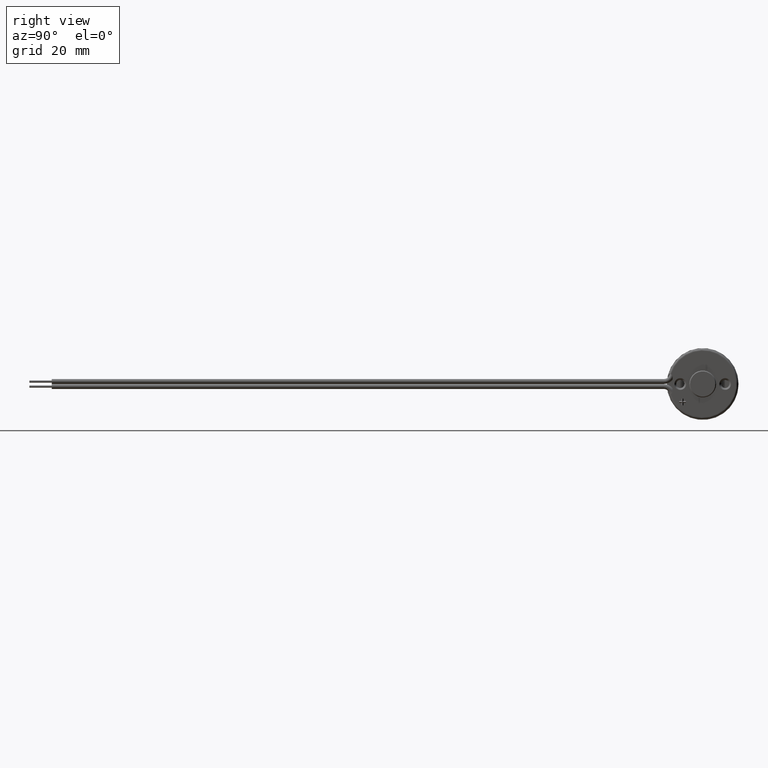
[diagram: clean part render]
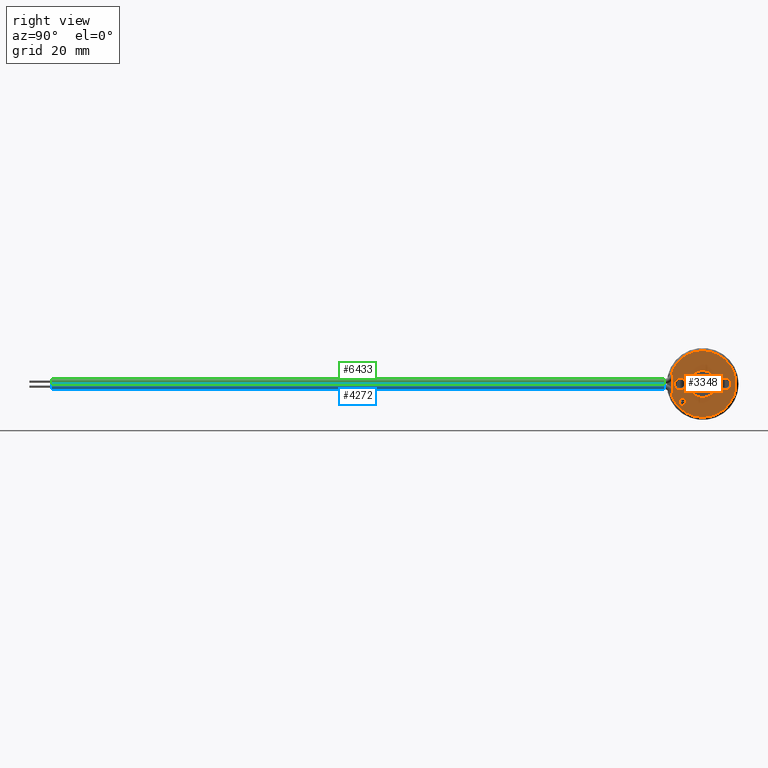
[diagram: same view with three faces highlighted in distinct colors, each labeled with its STEP entity id]
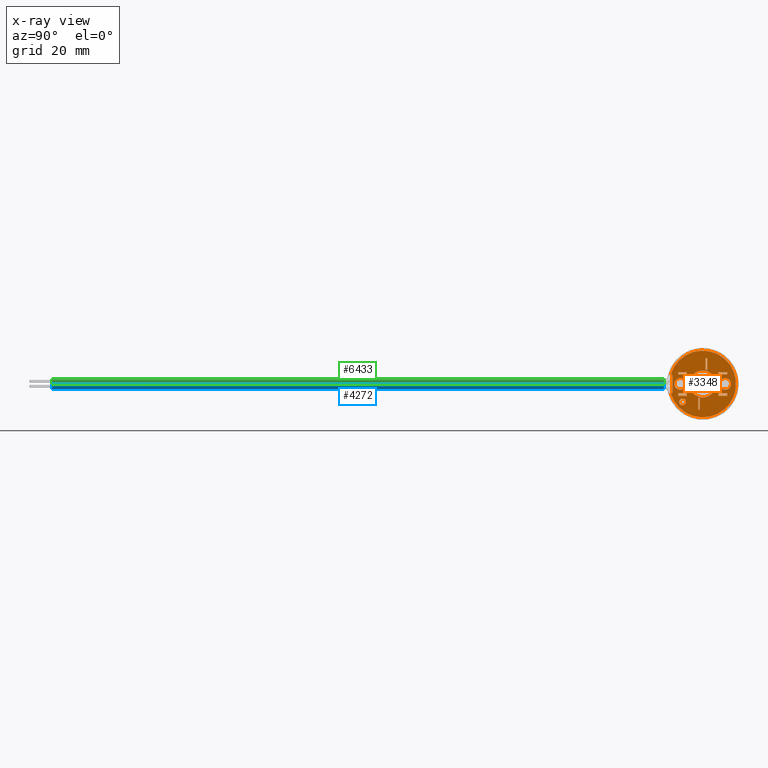
[diagram: x-ray of the same camera — body ghosted, the three highlighted faces saturated]
A machine part, right view with three faces highlighted in distinct colors.
The next image is the same camera in x-ray (body ghosted, the three faces saturated) — at least one of them is partly hidden behind the body in this view.
Their STEP definitions:

[orange] entity #3348 — the highlighted planar face has unit normal (-1, 0, 0).
#38=CARTESIAN_POINT('',(3.55E1,0.E0,0.E0));
#39=DIRECTION('',(1.E0,0.E0,0.E0));
#40=DIRECTION('',(0.E0,1.E0,0.E0));
#41=AXIS2_PLACEMENT_3D('',#38,#39,#40);
#43=CARTESIAN_POINT('',(3.55E1,0.E0,0.E0));
#44=DIRECTION('',(-1.E0,0.E0,0.E0));
#45=DIRECTION('',(0.E0,1.E0,0.E0));
#46=AXIS2_PLACEMENT_3D('',#43,#44,#45);
#48=CARTESIAN_POINT('',(3.549997758490E1,-5.E0,0.E0));
#49=DIRECTION('',(-1.E0,0.E0,0.E0));
#50=DIRECTION('',(0.E0,0.E0,-1.E0));
#51=AXIS2_PLACEMENT_3D('',#48,#49,#50);
#53=CARTESIAN_POINT('',(3.549997758490E1,-5.E0,0.E0));
#54=DIRECTION('',(-1.E0,0.E0,0.E0));
#55=DIRECTION('',(0.E0,0.E0,1.E0));
#56=AXIS2_PLACEMENT_3D('',#53,#54,#55);
#58=CARTESIAN_POINT('',(3.549997758490E1,5.E0,0.E0));
#59=DIRECTION('',(-1.E0,0.E0,0.E0));
#60=DIRECTION('',(0.E0,0.E0,-1.E0));
#61=AXIS2_PLACEMENT_3D('',#58,#59,#60);
#63=CARTESIAN_POINT('',(3.549997758490E1,5.E0,0.E0));
#64=DIRECTION('',(-1.E0,0.E0,0.E0));
#65=DIRECTION('',(0.E0,0.E0,1.E0));
#66=AXIS2_PLACEMENT_3D('',#63,#64,#65);
#68=DIRECTION('',(0.E0,-1.E0,0.E0));
#69=VECTOR('',#68,4.E-1);
#70=CARTESIAN_POINT('',(3.55E1,1.E0,5.7E0));
#71=LINE('',#70,#69);
#72=DIRECTION('',(0.E0,0.E0,-1.E0));
#73=VECTOR('',#72,2.6E0);
#74=CARTESIAN_POINT('',(3.55E1,6.E-1,5.7E0));
#75=LINE('',#74,#73);
#76=DIRECTION('',(0.E0,1.E0,0.E0));
#77=VECTOR('',#76,4.E-1);
#78=CARTESIAN_POINT('',(3.55E1,6.E-1,3.1E0));
#79=LINE('',#78,#77);
#80=DIRECTION('',(0.E0,0.E0,1.E0));
#81=VECTOR('',#80,2.6E0);
#82=CARTESIAN_POINT('',(3.55E1,1.E0,3.1E0));
#83=LINE('',#82,#81);
#84=DIRECTION('',(0.E0,-1.E0,0.E0));
#85=VECTOR('',#84,4.E-1);
#86=CARTESIAN_POINT('',(3.55E1,-6.E-1,-3.1E0));
#87=LINE('',#86,#85);
#88=DIRECTION('',(0.E0,0.E0,-1.E0));
#89=VECTOR('',#88,2.6E0);
#90=CARTESIAN_POINT('',(3.55E1,-1.E0,-3.1E0));
#91=LINE('',#90,#89);
#92=DIRECTION('',(0.E0,1.E0,0.E0));
#93=VECTOR('',#92,4.E-1);
#94=CARTESIAN_POINT('',(3.55E1,-1.E0,-5.7E0));
#95=LINE('',#94,#93);
#96=DIRECTION('',(0.E0,0.E0,1.E0));
#97=VECTOR('',#96,2.6E0);
#98=CARTESIAN_POINT('',(3.55E1,-6.E-1,-5.7E0));
#99=LINE('',#98,#97);
#100=DIRECTION('',(0.E0,0.E0,1.E0));
#101=VECTOR('',#100,5.4E-1);
#102=CARTESIAN_POINT('',(3.55E1,5.5E0,-2.64E0));
#103=LINE('',#102,#101);
#104=DIRECTION('',(0.E0,-1.E0,0.E0));
#105=VECTOR('',#104,2.E0);
#106=CARTESIAN_POINT('',(3.55E1,5.5E0,-2.1E0));
#107=LINE('',#106,#105);
#108=DIRECTION('',(0.E0,0.E0,-1.E0));
#109=VECTOR('',#108,5.4E-1);
#110=CARTESIAN_POINT('',(3.55E1,3.5E0,-2.1E0));
#111=LINE('',#110,#109);
#112=DIRECTION('',(0.E0,1.E0,0.E0));
#113=VECTOR('',#112,2.E0);
#114=CARTESIAN_POINT('',(3.55E1,3.5E0,-2.64E0));
#115=LINE('',#114,#113);
#116=DIRECTION('',(0.E0,-1.E0,0.E0));
#117=VECTOR('',#116,2.E0);
#118=CARTESIAN_POINT('',(3.55E1,5.5E0,2.64E0));
#119=LINE('',#118,#117);
#120=DIRECTION('',(0.E0,0.E0,-1.E0));
#121=VECTOR('',#120,5.4E-1);
#122=CARTESIAN_POINT('',(3.55E1,3.5E0,2.64E0));
#123=LINE('',#122,#121);
#124=DIRECTION('',(0.E0,1.E0,0.E0));
#125=VECTOR('',#124,2.E0);
#126=CARTESIAN_POINT('',(3.55E1,3.5E0,2.1E0));
#127=LINE('',#126,#125);
#128=DIRECTION('',(0.E0,0.E0,1.E0));
#129=VECTOR('',#128,5.4E-1);
#130=CARTESIAN_POINT('',(3.55E1,5.5E0,2.1E0));
#131=LINE('',#130,#129);
#132=DIRECTION('',(0.E0,1.E0,0.E0));
#133=VECTOR('',#132,2.E0);
#134=CARTESIAN_POINT('',(3.55E1,-5.5E0,-2.64E0));
#135=LINE('',#134,#133);
#136=DIRECTION('',(0.E0,0.E0,1.E0));
#137=VECTOR('',#136,5.4E-1);
#138=CARTESIAN_POINT('',(3.55E1,-3.5E0,-2.64E0));
#139=LINE('',#138,#137);
#140=DIRECTION('',(0.E0,-1.E0,0.E0));
#141=VECTOR('',#140,2.E0);
#142=CARTESIAN_POINT('',(3.55E1,-3.5E0,-2.1E0));
#143=LINE('',#142,#141);
#144=DIRECTION('',(0.E0,0.E0,-1.E0));
#145=VECTOR('',#144,5.4E-1);
#146=CARTESIAN_POINT('',(3.55E1,-5.5E0,-2.1E0));
#147=LINE('',#146,#145);
#148=DIRECTION('',(0.E0,0.E0,-1.E0));
#149=VECTOR('',#148,5.4E-1);
#150=CARTESIAN_POINT('',(3.55E1,-5.5E0,2.64E0));
#151=LINE('',#150,#149);
#152=DIRECTION('',(0.E0,1.E0,0.E0));
#153=VECTOR('',#152,2.E0);
#154=CARTESIAN_POINT('',(3.55E1,-5.5E0,2.1E0));
#155=LINE('',#154,#153);
#156=DIRECTION('',(0.E0,0.E0,1.E0));
#157=VECTOR('',#156,5.4E-1);
#158=CARTESIAN_POINT('',(3.55E1,-3.5E0,2.1E0));
#159=LINE('',#158,#157);
#160=DIRECTION('',(0.E0,-1.E0,0.E0));
#161=VECTOR('',#160,2.E0);
#162=CARTESIAN_POINT('',(3.55E1,-3.5E0,2.64E0));
#163=LINE('',#162,#161);
#164=CARTESIAN_POINT('',(3.55E1,-4.5E0,-4.E0));
#165=DIRECTION('',(1.E0,0.E0,0.E0));
#166=DIRECTION('',(0.E0,1.065814103640E-14,-1.E0));
#167=AXIS2_PLACEMENT_3D('',#164,#165,#166);
#169=CARTESIAN_POINT('',(3.55E1,-4.5E0,-4.E0));
#170=DIRECTION('',(1.E0,0.E0,0.E0));
#171=DIRECTION('',(0.E0,1.065814103640E-14,1.E0));
#172=AXIS2_PLACEMENT_3D('',#169,#170,#171);
#174=CARTESIAN_POINT('',(3.55E1,0.E0,0.E0));
#175=DIRECTION('',(-1.E0,0.E0,0.E0));
#176=DIRECTION('',(0.E0,-9.563047559630E-1,2.923717047227E-1));
#177=AXIS2_PLACEMENT_3D('',#174,#175,#176);
#179=DIRECTION('',(0.E0,9.563047559630E-1,2.923717047228E-1));
#180=VECTOR('',#179,4.388469402186E-2);
#181=CARTESIAN_POINT('',(3.55E1,-7.095781289246E0,-2.169398049043E0));
#182=LINE('',#181,#180);
#183=DIRECTION('',(0.E0,0.E0,1.E0));
#184=VECTOR('',#183,3.356830056517E0);
#185=CARTESIAN_POINT('',(3.55E1,-6.7E0,-1.678415028259E0));
#186=LINE('',#185,#184);
#187=DIRECTION('',(0.E0,-9.563047559630E-1,2.923717047227E-1));
#188=VECTOR('',#187,4.388469402186E-2);
#189=CARTESIAN_POINT('',(3.55E1,-7.053814147639E0,2.156567406240E0));
#190=LINE('',#189,#188);
#618=CARTESIAN_POINT('',(3.55E1,-7.2E0,-1.678415028259E0));
#619=DIRECTION('',(-1.E0,0.E0,0.E0));
#620=DIRECTION('',(0.E0,1.E0,0.E0));
#621=AXIS2_PLACEMENT_3D('',#618,#619,#620);
#2516=CARTESIAN_POINT('',(3.55E1,-7.2E0,1.678415028259E0));
#2517=DIRECTION('',(-1.E0,0.E0,0.E0));
#2518=DIRECTION('',(0.E0,2.923717047227E-1,9.563047559630E-1));
#2519=AXIS2_PLACEMENT_3D('',#2516,#2517,#2518);
#2617=CARTESIAN_POINT('',(3.55E1,3.E0,0.E0));
#2618=CARTESIAN_POINT('',(3.55E1,-3.E0,0.E0));
#2619=VERTEX_POINT('',#2617);
#2620=VERTEX_POINT('',#2618);
#2645=CARTESIAN_POINT('',(3.549997758490E1,-5.E0,-1.300020910666E0));
#2646=CARTESIAN_POINT('',(3.549997758490E1,-5.E0,1.300020910666E0));
#2647=VERTEX_POINT('',#2645);
#2648=VERTEX_POINT('',#2646);
#2653=CARTESIAN_POINT('',(3.549997758490E1,5.E0,-1.300020910666E0));
#2654=CARTESIAN_POINT('',(3.549997758490E1,5.E0,1.300020910666E0));
#2655=VERTEX_POINT('',#2653);
#2656=VERTEX_POINT('',#2654);
#2669=CARTESIAN_POINT('',(3.55E1,5.5E0,-2.64E0));
#2670=CARTESIAN_POINT('',(3.55E1,5.5E0,-2.1E0));
#2671=VERTEX_POINT('',#2669);
#2672=VERTEX_POINT('',#2670);
#2673=CARTESIAN_POINT('',(3.55E1,3.5E0,-2.1E0));
#2674=VERTEX_POINT('',#2673);
#2675=CARTESIAN_POINT('',(3.55E1,3.5E0,-2.64E0));
#2676=VERTEX_POINT('',#2675);
#2701=CARTESIAN_POINT('',(3.55E1,5.5E0,2.64E0));
#2702=CARTESIAN_POINT('',(3.55E1,3.5E0,2.64E0));
#2703=VERTEX_POINT('',#2701);
#2704=VERTEX_POINT('',#2702);
#2705=CARTESIAN_POINT('',(3.55E1,3.5E0,2.1E0));
#2706=VERTEX_POINT('',#2705);
#2707=CARTESIAN_POINT('',(3.55E1,5.5E0,2.1E0));
#2708=VERTEX_POINT('',#2707);
#2709=CARTESIAN_POINT('',(3.55E1,-5.5E0,-2.64E0));
#2710=CARTESIAN_POINT('',(3.55E1,-3.5E0,-2.64E0));
#2711=VERTEX_POINT('',#2709);
#2712=VERTEX_POINT('',#2710);
#2713=CARTESIAN_POINT('',(3.55E1,-3.5E0,-2.1E0));
#2714=VERTEX_POINT('',#2713);
#2715=CARTESIAN_POINT('',(3.55E1,-5.5E0,-2.1E0));
#2716=VERTEX_POINT('',#2715);
#2717=CARTESIAN_POINT('',(3.55E1,-5.5E0,2.64E0));
#2718=CARTESIAN_POINT('',(3.55E1,-5.5E0,2.1E0));
#2719=VERTEX_POINT('',#2717);
#2720=VERTEX_POINT('',#2718);
#2721=CARTESIAN_POINT('',(3.55E1,-3.5E0,2.1E0));
#2722=VERTEX_POINT('',#2721);
#2723=CARTESIAN_POINT('',(3.55E1,-3.5E0,2.64E0));
#2724=VERTEX_POINT('',#2723);
#2741=CARTESIAN_POINT('',(3.55E1,1.E0,5.7E0));
#2742=CARTESIAN_POINT('',(3.55E1,6.E-1,5.7E0));
#2743=VERTEX_POINT('',#2741);
#2744=VERTEX_POINT('',#2742);
#2745=CARTESIAN_POINT('',(3.55E1,6.E-1,3.1E0));
#2746=VERTEX_POINT('',#2745);
#2747=CARTESIAN_POINT('',(3.55E1,1.E0,3.1E0));
#2748=VERTEX_POINT('',#2747);
#2749=CARTESIAN_POINT('',(3.55E1,-6.E-1,-3.1E0));
#2750=CARTESIAN_POINT('',(3.55E1,-1.E0,-3.1E0));
#2751=VERTEX_POINT('',#2749);
#2752=VERTEX_POINT('',#2750);
#2753=CARTESIAN_POINT('',(3.55E1,-1.E0,-5.7E0));
#2754=VERTEX_POINT('',#2753);
#2755=CARTESIAN_POINT('',(3.55E1,-6.E-1,-5.7E0));
#2756=VERTEX_POINT('',#2755);
#2757=CARTESIAN_POINT('',(3.55E1,-4.5E0,-4.75E0));
#2758=CARTESIAN_POINT('',(3.55E1,-4.5E0,-3.25E0));
#2759=VERTEX_POINT('',#2757);
#2760=VERTEX_POINT('',#2758);
#3074=CARTESIAN_POINT('',(3.55E1,-7.095781289246E0,-2.169398049043E0));
#3076=VERTEX_POINT('',#3074);
#3077=CARTESIAN_POINT('',(3.55E1,-7.095781289246E0,2.169398049043E0));
#3078=VERTEX_POINT('',#3077);
#3085=CARTESIAN_POINT('',(3.55E1,-6.7E0,-1.678415028259E0));
#3086=CARTESIAN_POINT('',(3.55E1,-6.7E0,1.678415028259E0));
#3087=VERTEX_POINT('',#3085);
#3088=VERTEX_POINT('',#3086);
#3093=CARTESIAN_POINT('',(3.55E1,-7.053814147639E0,2.156567406240E0));
#3094=VERTEX_POINT('',#3093);
#3095=CARTESIAN_POINT('',(3.55E1,-7.053814147639E0,-2.156567406240E0));
#3096=VERTEX_POINT('',#3095);
#3247=CARTESIAN_POINT('',(3.55E1,0.E0,0.E0));
#3248=DIRECTION('',(-1.E0,0.E0,0.E0));
#3249=DIRECTION('',(0.E0,1.E0,0.E0));
#3250=AXIS2_PLACEMENT_3D('',#3247,#3248,#3249);
#3251=PLANE('',#3250);
#3253=ORIENTED_EDGE('',*,*,#3252,.T.);
#3255=ORIENTED_EDGE('',*,*,#3254,.T.);
#3257=ORIENTED_EDGE('',*,*,#3256,.F.);
#3259=ORIENTED_EDGE('',*,*,#3258,.T.);
#3261=ORIENTED_EDGE('',*,*,#3260,.F.);
#3263=ORIENTED_EDGE('',*,*,#3262,.T.);
#3264=EDGE_LOOP('',(#3253,#3255,#3257,#3259,#3261,#3263));
#3265=FACE_OUTER_BOUND('',#3264,.F.);
#3267=ORIENTED_EDGE('',*,*,#3266,.F.);
#3269=ORIENTED_EDGE('',*,*,#3268,.F.);
#3270=EDGE_LOOP('',(#3267,#3269));
#3271=FACE_BOUND('',#3270,.F.);
#3273=ORIENTED_EDGE('',*,*,#3272,.F.);
#3275=ORIENTED_EDGE('',*,*,#3274,.F.);
#3276=EDGE_LOOP('',(#3273,#3275));
#3277=FACE_BOUND('',#3276,.F.);
#3279=ORIENTED_EDGE('',*,*,#3278,.T.);
#3281=ORIENTED_EDGE('',*,*,#3280,.T.);
#3283=ORIENTED_EDGE('',*,*,#3282,.T.);
#3285=ORIENTED_EDGE('',*,*,#3284,.T.);
#3286=EDGE_LOOP('',(#3279,#3281,#3283,#3285));
#3287=FACE_BOUND('',#3286,.F.);
#3289=ORIENTED_EDGE('',*,*,#3288,.T.);
#3291=ORIENTED_EDGE('',*,*,#3290,.T.);
#3293=ORIENTED_EDGE('',*,*,#3292,.T.);
#3295=ORIENTED_EDGE('',*,*,#3294,.T.);
#3296=EDGE_LOOP('',(#3289,#3291,#3293,#3295));
#3297=FACE_BOUND('',#3296,.F.);
#3299=ORIENTED_EDGE('',*,*,#3298,.T.);
#3301=ORIENTED_EDGE('',*,*,#3300,.T.);
#3303=ORIENTED_EDGE('',*,*,#3302,.T.);
#3305=ORIENTED_EDGE('',*,*,#3304,.T.);
#3306=EDGE_LOOP('',(#3299,#3301,#3303,#3305));
#3307=FACE_BOUND('',#3306,.F.);
#3309=ORIENTED_EDGE('',*,*,#3308,.T.);
#3311=ORIENTED_EDGE('',*,*,#3310,.T.);
#3313=ORIENTED_EDGE('',*,*,#3312,.T.);
#3315=ORIENTED_EDGE('',*,*,#3314,.T.);
#3316=EDGE_LOOP('',(#3309,#3311,#3313,#3315));
#3317=FACE_BOUND('',#3316,.F.);
#3319=ORIENTED_EDGE('',*,*,#3318,.T.);
#3321=ORIENTED_EDGE('',*,*,#3320,.T.);
#3323=ORIENTED_EDGE('',*,*,#3322,.T.);
#3325=ORIENTED_EDGE('',*,*,#3324,.T.);
#3326=EDGE_LOOP('',(#3319,#3321,#3323,#3325));
#3327=FACE_BOUND('',#3326,.F.);
#3329=ORIENTED_EDGE('',*,*,#3328,.T.);
#3331=ORIENTED_EDGE('',*,*,#3330,.T.);
#3333=ORIENTED_EDGE('',*,*,#3332,.T.);
#3335=ORIENTED_EDGE('',*,*,#3334,.T.);
#3336=EDGE_LOOP('',(#3329,#3331,#3333,#3335));
#3337=FACE_BOUND('',#3336,.F.);
#3339=ORIENTED_EDGE('',*,*,#3338,.T.);
#3341=ORIENTED_EDGE('',*,*,#3340,.T.);
#3342=EDGE_LOOP('',(#3339,#3341));
#3343=FACE_BOUND('',#3342,.F.);
#3344=ORIENTED_EDGE('',*,*,#3229,.T.);
#3345=ORIENTED_EDGE('',*,*,#3214,.F.);
#3346=EDGE_LOOP('',(#3344,#3345));
#3347=FACE_BOUND('',#3346,.F.);
#3348=ADVANCED_FACE('',(#3265,#3271,#3277,#3287,#3297,#3307,#3317,#3327,#3337,
#3343,#3347),#3251,.F.);
#42=CIRCLE('',#41,3.E0);
#47=CIRCLE('',#46,3.E0);
#52=CIRCLE('',#51,1.300020910666E0);
#57=CIRCLE('',#56,1.300020910666E0);
#62=CIRCLE('',#61,1.300020910666E0);
#67=CIRCLE('',#66,1.300020910666E0);
#168=CIRCLE('',#167,7.5E-1);
#173=CIRCLE('',#172,7.5E-1);
#178=CIRCLE('',#177,7.42E0);
#622=CIRCLE('',#621,5.E-1);
#2520=CIRCLE('',#2519,5.E-1);
#3214=EDGE_CURVE('',#2619,#2620,#47,.T.);
#3229=EDGE_CURVE('',#2619,#2620,#42,.T.);
#3252=EDGE_CURVE('',#3078,#3076,#178,.T.);
#3254=EDGE_CURVE('',#3076,#3096,#182,.T.);
#3256=EDGE_CURVE('',#3087,#3096,#622,.T.);
#3258=EDGE_CURVE('',#3087,#3088,#186,.T.);
#3260=EDGE_CURVE('',#3094,#3088,#2520,.T.);
#3262=EDGE_CURVE('',#3094,#3078,#190,.T.);
#3266=EDGE_CURVE('',#2647,#2648,#52,.T.);
#3268=EDGE_CURVE('',#2648,#2647,#57,.T.);
#3272=EDGE_CURVE('',#2655,#2656,#62,.T.);
#3274=EDGE_CURVE('',#2656,#2655,#67,.T.);
#3278=EDGE_CURVE('',#2743,#2744,#71,.T.);
#3280=EDGE_CURVE('',#2744,#2746,#75,.T.);
#3282=EDGE_CURVE('',#2746,#2748,#79,.T.);
#3284=EDGE_CURVE('',#2748,#2743,#83,.T.);
#3288=EDGE_CURVE('',#2751,#2752,#87,.T.);
#3290=EDGE_CURVE('',#2752,#2754,#91,.T.);
#3292=EDGE_CURVE('',#2754,#2756,#95,.T.);
#3294=EDGE_CURVE('',#2756,#2751,#99,.T.);
#3298=EDGE_CURVE('',#2671,#2672,#103,.T.);
#3300=EDGE_CURVE('',#2672,#2674,#107,.T.);
#3302=EDGE_CURVE('',#2674,#2676,#111,.T.);
#3304=EDGE_CURVE('',#2676,#2671,#115,.T.);
#3308=EDGE_CURVE('',#2703,#2704,#119,.T.);
#3310=EDGE_CURVE('',#2704,#2706,#123,.T.);
#3312=EDGE_CURVE('',#2706,#2708,#127,.T.);
#3314=EDGE_CURVE('',#2708,#2703,#131,.T.);
#3318=EDGE_CURVE('',#2711,#2712,#135,.T.);
#3320=EDGE_CURVE('',#2712,#2714,#139,.T.);
#3322=EDGE_CURVE('',#2714,#2716,#143,.T.);
#3324=EDGE_CURVE('',#2716,#2711,#147,.T.);
#3328=EDGE_CURVE('',#2719,#2720,#151,.T.);
#3330=EDGE_CURVE('',#2720,#2722,#155,.T.);
#3332=EDGE_CURVE('',#2722,#2724,#159,.T.);
#3334=EDGE_CURVE('',#2724,#2719,#163,.T.);
#3338=EDGE_CURVE('',#2759,#2760,#168,.T.);
#3340=EDGE_CURVE('',#2760,#2759,#173,.T.);

[blue] entity #4272 — the highlighted cylindrical surface (edge-blend (fillet) strip) has radius 0.55 mm, axis along (0, -1, 0).
#714=DIRECTION('',(0.E0,-1.E0,0.E0));
#715=VECTOR('',#714,1.3635E2);
#716=CARTESIAN_POINT('',(3.405E1,-8.65E0,-1.E-2));
#717=LINE('',#716,#715);
#718=CARTESIAN_POINT('',(3.405E1,-8.65E0,-5.6E-1));
#719=DIRECTION('',(0.E0,-1.E0,0.E0));
#720=DIRECTION('',(0.E0,0.E0,-1.E0));
#721=AXIS2_PLACEMENT_3D('',#718,#719,#720);
#723=DIRECTION('',(0.E0,-1.E0,0.E0));
#724=VECTOR('',#723,1.3635E2);
#725=CARTESIAN_POINT('',(3.405E1,-8.65E0,-1.11E0));
#726=LINE('',#725,#724);
#727=CARTESIAN_POINT('',(3.405E1,-1.45E2,-5.6E-1));
#728=DIRECTION('',(0.E0,-1.E0,0.E0));
#729=DIRECTION('',(0.E0,0.E0,-1.E0));
#730=AXIS2_PLACEMENT_3D('',#727,#728,#729);
#3117=CARTESIAN_POINT('',(3.405E1,-8.65E0,-1.11E0));
#3118=CARTESIAN_POINT('',(3.405E1,-8.65E0,-1.E-2));
#3119=VERTEX_POINT('',#3117);
#3120=VERTEX_POINT('',#3118);
#3123=CARTESIAN_POINT('',(3.405E1,-1.45E2,-1.11E0));
#3124=CARTESIAN_POINT('',(3.405E1,-1.45E2,-1.000000000001E-2));
#3125=VERTEX_POINT('',#3123);
#3126=VERTEX_POINT('',#3124);
#4260=CARTESIAN_POINT('',(3.405E1,-8.65E0,-5.6E-1));
#4261=DIRECTION('',(0.E0,-1.E0,0.E0));
#4262=DIRECTION('',(0.E0,0.E0,-1.E0));
#4263=AXIS2_PLACEMENT_3D('',#4260,#4261,#4262);
#4264=CYLINDRICAL_SURFACE('',#4263,5.5E-1);
#4265=ORIENTED_EDGE('',*,*,#4199,.F.);
#4266=ORIENTED_EDGE('',*,*,#4255,.T.);
#4268=ORIENTED_EDGE('',*,*,#4267,.T.);
#4269=ORIENTED_EDGE('',*,*,#4251,.F.);
#4270=EDGE_LOOP('',(#4265,#4266,#4268,#4269));
#4271=FACE_OUTER_BOUND('',#4270,.F.);
#4272=ADVANCED_FACE('',(#4271),#4264,.T.);
#722=CIRCLE('',#721,5.5E-1);
#731=CIRCLE('',#730,5.5E-1);
#4199=EDGE_CURVE('',#3119,#3120,#722,.T.);
#4251=EDGE_CURVE('',#3120,#3126,#717,.T.);
#4255=EDGE_CURVE('',#3119,#3125,#726,.T.);
#4267=EDGE_CURVE('',#3125,#3126,#731,.T.);

[green] entity #6433 — the highlighted cylindrical surface (edge-blend (fillet) strip) has radius 0.55 mm, axis along (0, 1, 0).
#2487=CARTESIAN_POINT('',(3.405E1,-8.65E0,5.6E-1));
#2488=DIRECTION('',(0.E0,1.E0,0.E0));
#2489=DIRECTION('',(1.291895883200E-14,0.E0,1.E0));
#2490=AXIS2_PLACEMENT_3D('',#2487,#2488,#2489);
#2539=DIRECTION('',(0.E0,1.E0,0.E0));
#2540=VECTOR('',#2539,1.3635E2);
#2541=CARTESIAN_POINT('',(3.405E1,-1.45E2,1.E-2));
#2542=LINE('',#2541,#2540);
#2543=CARTESIAN_POINT('',(3.405E1,-1.45E2,5.6E-1));
#2544=DIRECTION('',(0.E0,1.E0,0.E0));
#2545=DIRECTION('',(0.E0,0.E0,1.E0));
#2546=AXIS2_PLACEMENT_3D('',#2543,#2544,#2545);
#2563=DIRECTION('',(0.E0,1.E0,0.E0));
#2564=VECTOR('',#2563,1.3635E2);
#2565=CARTESIAN_POINT('',(3.405E1,-1.45E2,1.11E0));
#2566=LINE('',#2565,#2564);
#3097=CARTESIAN_POINT('',(3.405E1,-1.45E2,1.11E0));
#3098=CARTESIAN_POINT('',(3.405E1,-1.45E2,1.E-2));
#3099=VERTEX_POINT('',#3097);
#3100=VERTEX_POINT('',#3098);
#3101=CARTESIAN_POINT('',(3.405E1,-8.65E0,1.11E0));
#3102=CARTESIAN_POINT('',(3.405E1,-8.65E0,1.E-2));
#3103=VERTEX_POINT('',#3101);
#3104=VERTEX_POINT('',#3102);
#6422=CARTESIAN_POINT('',(3.405E1,-1.45E2,5.6E-1));
#6423=DIRECTION('',(0.E0,1.E0,0.E0));
#6424=DIRECTION('',(0.E0,0.E0,1.E0));
#6425=AXIS2_PLACEMENT_3D('',#6422,#6423,#6424);
#6426=CYLINDRICAL_SURFACE('',#6425,5.5E-1);
#6427=ORIENTED_EDGE('',*,*,#6410,.F.);
#6428=ORIENTED_EDGE('',*,*,#6400,.T.);
#6429=ORIENTED_EDGE('',*,*,#6329,.T.);
#6430=ORIENTED_EDGE('',*,*,#6397,.F.);
#6431=EDGE_LOOP('',(#6427,#6428,#6429,#6430));
#6432=FACE_OUTER_BOUND('',#6431,.F.);
#6433=ADVANCED_FACE('',(#6432),#6426,.T.);
#2491=CIRCLE('',#2490,5.5E-1);
#2547=CIRCLE('',#2546,5.5E-1);
#6329=EDGE_CURVE('',#3103,#3104,#2491,.T.);
#6397=EDGE_CURVE('',#3100,#3104,#2542,.T.);
#6400=EDGE_CURVE('',#3099,#3103,#2566,.T.);
#6410=EDGE_CURVE('',#3099,#3100,#2547,.T.);